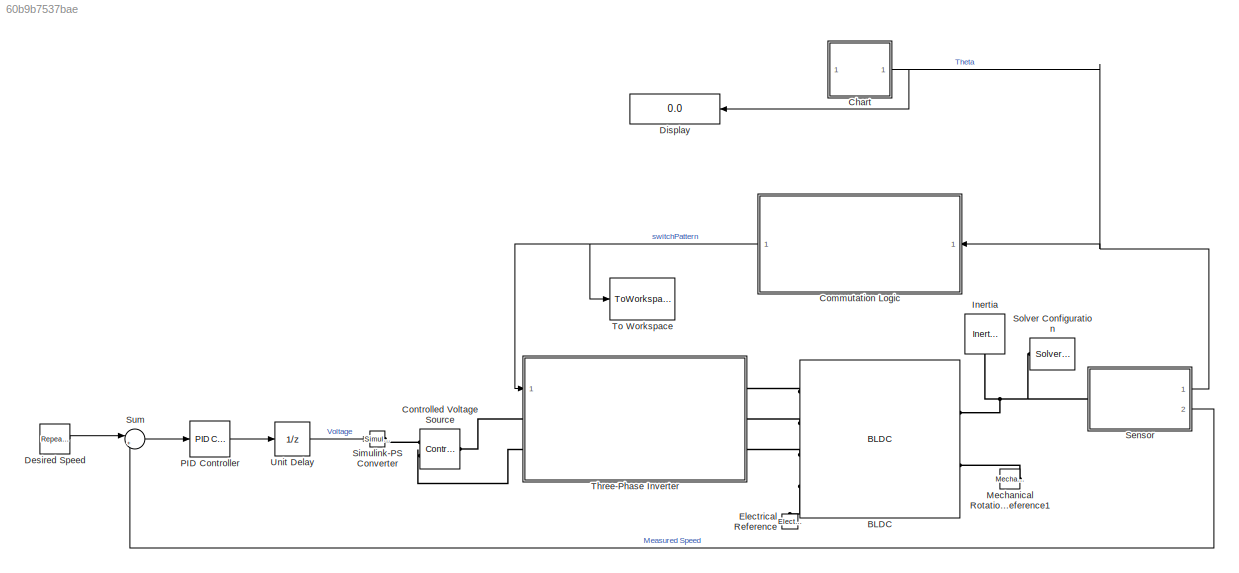
MODEL slx_60b9b7537bae
KIND model
CONFIG AbsTol = auto
CONFIG EnableMultiTasking = off
CONFIG FixedStep = 2e-5
CONFIG MaxStep = auto
CONFIG MinStep = auto
CONFIG RelTol = 1e-3
CONFIG SampleTimeConstraint = Unconstrained
CONFIG SolverName = ode14x
CONFIG StartTime = 0.0
CONFIG StopTime = 2
BLOCK [Reference] BLDC  REF=ee_lib/Electromechanical/Permanent Magnet/BLDC
  Ports = [0, 0, 0, 0, 0, 4, 2]
  SourceBlock = ee_lib/Electromechanical/Permanent Magnet/BLDC
  SourceProductBaseCode = PS
  SourceType = BLDC
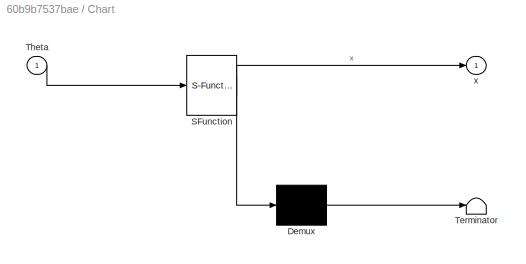
BLOCK [SubSystem] Chart
  ErrorFcn = Stateflow.Translate.translate
  PermitHierarchicalResolution = ExplicitOnly
  PortSchema = {"entries":[{"content":{"sides":[{"content":{"connectorIds":[]},"type":"ConnectorPlacement.EquallySpacedRectSide","uuid":"8c901309-16a6-498d-adf7-dd9d2867a7e0"},{"content":{"connectorIds":["In1","Out1"],"side":"RIGHT"},"type":"ConnectorPlacement.EquallySpacedRectSide","uuid":"0f25d315-72e8-4043-9602-56e0f6033b55"},{"content":{"connectorIds":[],"side":"TOP"},"type":"ConnectorPlacement.EquallySpaced...<+241ch>
  Ports = [1, 1]
  RequestExecContextInheritance = off
  SFBlockType = Chart
  TreatAsAtomicUnit = on
BLOCK [Demux] Chart/ Demux 
  Outputs = 1
  Ports = [1, 1]
BLOCK [S-Function] Chart/ SFunction 
  EnableBusSupport = on
  FunctionName = sf_sfun
  PortCounts = [1 2]
  Ports = [1, 2]
  SFcnIsStateOwnerBlock = off
  SFunctionDeploymentMode = off
  Tag = Stateflow S-Function 1
BLOCK [Terminator] Chart/ Terminator 
BLOCK [Inport] Chart/Theta
BLOCK [Outport] Chart/x
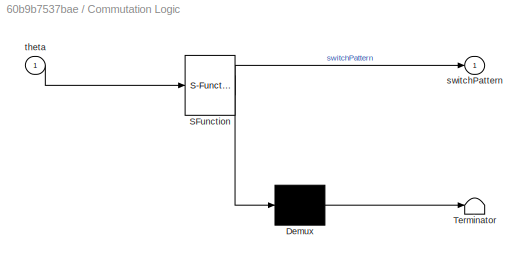
BLOCK [SubSystem] Commutation Logic
  ErrorFcn = Stateflow.Translate.translate
  PermitHierarchicalResolution = ExplicitOnly
  Ports = [1, 1]
  RequestExecContextInheritance = off
  SFBlockType = Chart
  TreatAsAtomicUnit = on
BLOCK [Demux] Commutation Logic/ Demux 
  Outputs = 1
  Ports = [1, 1]
BLOCK [S-Function] Commutation Logic/ SFunction 
  EnableBusSupport = on
  FunctionName = sf_sfun
  PortCounts = [1 2]
  Ports = [1, 2]
  SFcnIsStateOwnerBlock = off
  SFunctionDeploymentMode = off
  Tag = Stateflow S-Function 3
BLOCK [Terminator] Commutation Logic/ Terminator 
BLOCK [Outport] Commutation Logic/switchPattern
BLOCK [Inport] Commutation Logic/theta
BLOCK [Reference] Controlled Voltage Source  REF=fl_lib/Electrical/Electrical Sources/Controlled Voltage
Source
  Ports = [0, 0, 0, 0, 0, 1, 2]
  SourceBlock = fl_lib/Electrical/Electrical Sources/Controlled Voltage\nSource
  SourceProductBaseCode = SS
  SourceType = Controlled Voltage\nSource
BLOCK [Reference] Desired Speed  REF=simulink/Sources/Repeating
Sequence
  Ports = [0, 1]
  SourceBlock = simulink/Sources/Repeating\nSequence
  SourceProductBaseCode = SL
  SourceType = Repeating table
BLOCK [Display] Display
  Decimation = 1
  Ports = [1]
BLOCK [Reference] Electrical Reference  REF=fl_lib/Electrical/Electrical Elements/Electrical Reference
  NameLocation = right
  Ports = [0, 0, 0, 0, 0, 1]
  SourceBlock = fl_lib/Electrical/Electrical Elements/Electrical Reference
  SourceProductBaseCode = SS
  SourceType = Electrical Reference
BLOCK [Reference] Inertia  REF=fl_lib/Mechanical/Rotational Elements/Inertia
  NameLocation = left
  Ports = [0, 0, 0, 0, 0, 1]
  SourceBlock = fl_lib/Mechanical/Rotational Elements/Inertia
  SourceProductBaseCode = SS
  SourceType = Inertia
BLOCK [Reference] Mechanical Rotational Reference1  REF=fl_lib/Mechanical/Rotational Elements/Mechanical
Rotational Reference
  NameLocation = top
  Ports = [0, 0, 0, 0, 0, 1]
  SourceBlock = fl_lib/Mechanical/Rotational Elements/Mechanical\nRotational Reference
  SourceProductBaseCode = SS
  SourceType = Mechanical\nRotational Reference
BLOCK [Reference] PID Controller  REF=pid_lib/PID Controller
  Ports = [1, 1]
  SourceBlock = pid_lib/PID Controller
  SourceProductBaseCode = SL
  SourceType = PID 1dof
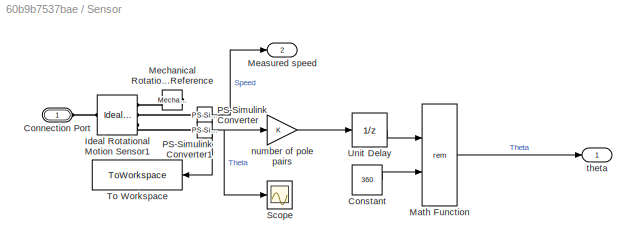
BLOCK [SubSystem] Sensor
  Ports = [0, 2, 0, 0, 0, 1]
  RequestExecContextInheritance = off
BLOCK [PMIOPort] Sensor/Connection Port
  Side = Left
BLOCK [Constant] Sensor/Constant
  SampleTime = 2e-5
  Value = 360
BLOCK [Reference] Sensor/Ideal Rotational Motion Sensor1  REF=fl_lib/Mechanical/Mechanical Sensors/Ideal Rotational
Motion Sensor
  Ports = [0, 0, 0, 0, 0, 1, 3]
  SourceBlock = fl_lib/Mechanical/Mechanical Sensors/Ideal Rotational\nMotion Sensor
  SourceProductBaseCode = SS
  SourceType = Ideal Rotational\nMotion Sensor
BLOCK [Math] Sensor/Math Function
  Operator = rem
  Ports = [2, 1]
BLOCK [Outport] Sensor/Measured speed
  Port = 2
BLOCK [Reference] Sensor/Mechanical Rotational Reference  REF=fl_lib/Mechanical/Rotational Elements/Mechanical
Rotational Reference
  NameLocation = top
  Ports = [0, 0, 0, 0, 0, 1]
  SourceBlock = fl_lib/Mechanical/Rotational Elements/Mechanical\nRotational Reference
  SourceProductBaseCode = SS
  SourceType = Mechanical\nRotational Reference
BLOCK [Reference] Sensor/PS-Simulink Converter  REF=nesl_utility/PS-Simulink
Converter
  Ports = [0, 1, 0, 0, 0, 1]
  SourceBlock = nesl_utility/PS-Simulink\nConverter
  SourceProductBaseCode = PW,SS
  SourceType = PS-Simulink\nConverter
BLOCK [Reference] Sensor/PS-Simulink Converter1  REF=nesl_utility/PS-Simulink
Converter
  Ports = [0, 1, 0, 0, 0, 1]
  SourceBlock = nesl_utility/PS-Simulink\nConverter
  SourceProductBaseCode = PW,SS
  SourceType = PS-Simulink\nConverter
BLOCK [Scope] Sensor/Scope
  Floating = off
  NumInputPorts = 1
  Ports = [1]
  ScopeSpecificationString = Simulink.scopes.TimeScopeBlockCfg('CurrentConfiguration', extmgr.ConfigurationSet(extmgr.Configuration('Core','General UI',true),extmgr.Configuration('Core','Source UI',true),extmgr.Configuration('Sources','WiredSimulink',true,'DataLoggingVariableName','ScopeData1','DataLogging',true,'DataLoggingSaveFormat','StructureWithTime'),extmgr.Configuration('Visuals','Time Domain',true,'SerializedDisplays'...<+1524ch>
BLOCK [ToWorkspace] Sensor/To Workspace
  FixptAsFi = on
  MaxDataPoints = inf
  Ports = [1]
  SampleTime = -1
  Save2DSignal = 2-D array (concatenate along first dimension)
  SaveFormat = Structure
  VariableName = thetaSim
BLOCK [UnitDelay] Sensor/Unit Delay
  HasFrameUpgradeWarning = on
  SampleTime = 2e-5
BLOCK [Gain] Sensor/number of pole pairs
BLOCK [Outport] Sensor/theta
BLOCK [Reference] Simulink-PS Converter  REF=nesl_utility/Simulink-PS
Converter
  Ports = [1, 0, 0, 0, 0, 0, 1]
  SourceBlock = nesl_utility/Simulink-PS\nConverter
  SourceProductBaseCode = PW,SS
  SourceType = Simulink-PS\nConverter
BLOCK [Reference] Solver Configuration  REF=nesl_utility/Solver
Configuration
  NameLocation = top
  Ports = [0, 0, 0, 0, 0, 0, 1]
  SourceBlock = nesl_utility/Solver\nConfiguration
  SourceProductBaseCode = PW,SS
  SourceType = Solver\nConfiguration
BLOCK [Sum] Sum
  Inputs = |+-
  Ports = [2, 1]
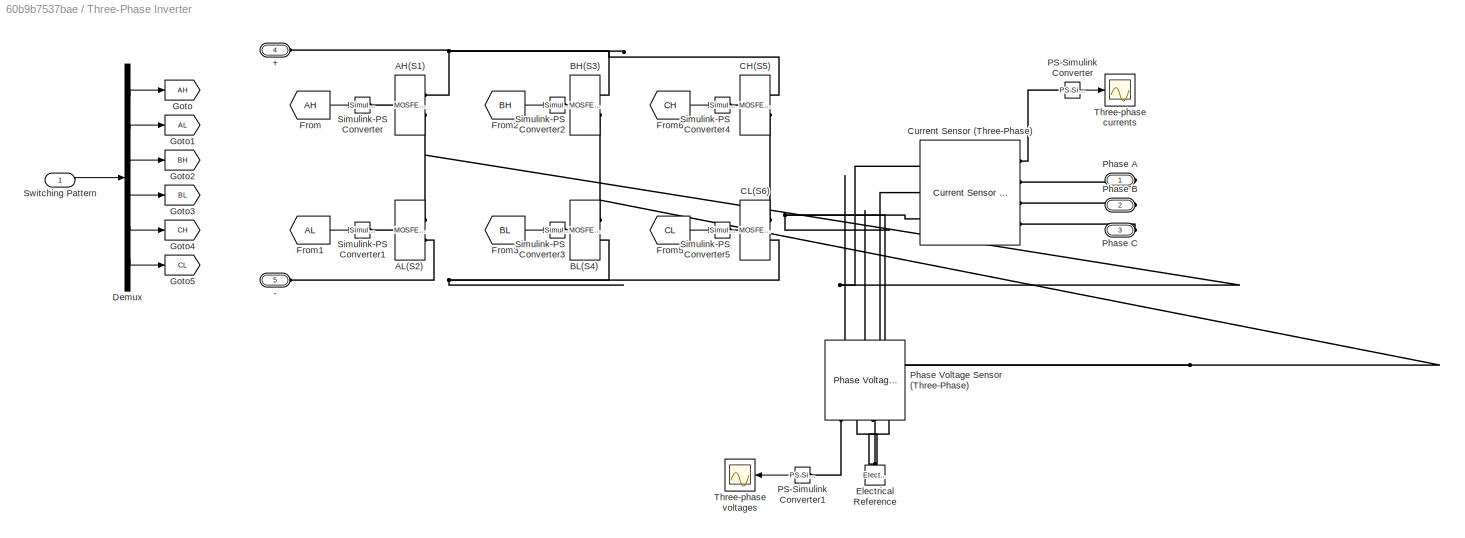
BLOCK [SubSystem] Three-Phase Inverter
  Ports = [1, 0, 0, 0, 0, 2, 3]
  RequestExecContextInheritance = off
BLOCK [PMIOPort] Three-Phase Inverter/+
  Port = 4
  Side = Left
BLOCK [PMIOPort] Three-Phase Inverter/-
  Port = 5
  Side = Left
BLOCK [Reference] Three-Phase Inverter/AH(S1)  REF=ee_lib/Semiconductors &
Converters/MOSFET
(Ideal,
Switching)
  Ports = [0, 0, 0, 0, 0, 1, 2]
  SourceBlock = ee_lib/Semiconductors &\nConverters/MOSFET\n(Ideal,\nSwitching)
  SourceProductBaseCode = PS
  SourceType = MOSFET\n(Ideal,\nSwitching)
BLOCK [Reference] Three-Phase Inverter/AL(S2)  REF=ee_lib/Semiconductors &
Converters/MOSFET
(Ideal,
Switching)
  Ports = [0, 0, 0, 0, 0, 1, 2]
  SourceBlock = ee_lib/Semiconductors &\nConverters/MOSFET\n(Ideal,\nSwitching)
  SourceProductBaseCode = PS
  SourceType = MOSFET\n(Ideal,\nSwitching)
BLOCK [Reference] Three-Phase Inverter/BH(S3)  REF=ee_lib/Semiconductors &
Converters/MOSFET
(Ideal,
Switching)
  Ports = [0, 0, 0, 0, 0, 1, 2]
  SourceBlock = ee_lib/Semiconductors &\nConverters/MOSFET\n(Ideal,\nSwitching)
  SourceProductBaseCode = PS
  SourceType = MOSFET\n(Ideal,\nSwitching)
BLOCK [Reference] Three-Phase Inverter/BL(S4)  REF=ee_lib/Semiconductors &
Converters/MOSFET
(Ideal,
Switching)
  Ports = [0, 0, 0, 0, 0, 1, 2]
  SourceBlock = ee_lib/Semiconductors &\nConverters/MOSFET\n(Ideal,\nSwitching)
  SourceProductBaseCode = PS
  SourceType = MOSFET\n(Ideal,\nSwitching)
BLOCK [Reference] Three-Phase Inverter/CH(S5)  REF=ee_lib/Semiconductors &
Converters/MOSFET
(Ideal,
Switching)
  Ports = [0, 0, 0, 0, 0, 1, 2]
  SourceBlock = ee_lib/Semiconductors &\nConverters/MOSFET\n(Ideal,\nSwitching)
  SourceProductBaseCode = PS
  SourceType = MOSFET\n(Ideal,\nSwitching)
BLOCK [Reference] Three-Phase Inverter/CL(S6)  REF=ee_lib/Semiconductors &
Converters/MOSFET
(Ideal,
Switching)
  Ports = [0, 0, 0, 0, 0, 1, 2]
  SourceBlock = ee_lib/Semiconductors &\nConverters/MOSFET\n(Ideal,\nSwitching)
  SourceProductBaseCode = PS
  SourceType = MOSFET\n(Ideal,\nSwitching)
BLOCK [Reference] Three-Phase Inverter/Current Sensor (Three-Phase)  REF=ee_lib/Sensors &
Transducers/Current Sensor
(Three-Phase)
  Ports = [0, 0, 0, 0, 0, 3, 4]
  SourceBlock = ee_lib/Sensors &\nTransducers/Current Sensor\n(Three-Phase)
  SourceProductBaseCode = PS
  SourceType = Current Sensor\n(Three-Phase)
BLOCK [Demux] Three-Phase Inverter/Demux
  Outputs = 6
  Ports = [1, 6]
BLOCK [Reference] Three-Phase Inverter/Electrical Reference  REF=fl_lib/Electrical/Electrical Elements/Electrical Reference
  NameLocation = right
  Ports = [0, 0, 0, 0, 0, 1]
  SourceBlock = fl_lib/Electrical/Electrical Elements/Electrical Reference
  SourceProductBaseCode = SS
  SourceType = Electrical Reference
BLOCK [From] Three-Phase Inverter/From
  GotoTag = AH
BLOCK [From] Three-Phase Inverter/From1
  GotoTag = AL
BLOCK [From] Three-Phase Inverter/From2
  GotoTag = BH
BLOCK [From] Three-Phase Inverter/From3
  GotoTag = BL
BLOCK [From] Three-Phase Inverter/From5
  GotoTag = CL
BLOCK [From] Three-Phase Inverter/From6
  GotoTag = CH
BLOCK [Goto] Three-Phase Inverter/Goto
  GotoTag = AH
BLOCK [Goto] Three-Phase Inverter/Goto1
  GotoTag = AL
BLOCK [Goto] Three-Phase Inverter/Goto2
  GotoTag = BH
BLOCK [Goto] Three-Phase Inverter/Goto3
  GotoTag = BL
BLOCK [Goto] Three-Phase Inverter/Goto4
  GotoTag = CH
BLOCK [Goto] Three-Phase Inverter/Goto5
  GotoTag = CL
BLOCK [Reference] Three-Phase Inverter/PS-Simulink Converter  REF=nesl_utility/PS-Simulink
Converter
  Ports = [0, 1, 0, 0, 0, 1]
  SourceBlock = nesl_utility/PS-Simulink\nConverter
  SourceProductBaseCode = PW,SS
  SourceType = PS-Simulink\nConverter
BLOCK [Reference] Three-Phase Inverter/PS-Simulink Converter1  REF=nesl_utility/PS-Simulink
Converter
  Ports = [0, 1, 0, 0, 0, 1]
  SourceBlock = nesl_utility/PS-Simulink\nConverter
  SourceProductBaseCode = PW,SS
  SourceType = PS-Simulink\nConverter
BLOCK [PMIOPort] Three-Phase Inverter/Phase A
  Side = Right
BLOCK [PMIOPort] Three-Phase Inverter/Phase B
  Port = 2
  Side = Right
BLOCK [PMIOPort] Three-Phase Inverter/Phase C
  Port = 3
  Side = Right
BLOCK [Reference] Three-Phase Inverter/Phase Voltage Sensor (Three-Phase)  REF=ee_lib/Sensors &
Transducers/Phase Voltage Sensor
(Three-Phase)
  NameLocation = right
  Ports = [0, 0, 0, 0, 0, 3, 4]
  SourceBlock = ee_lib/Sensors &\nTransducers/Phase Voltage Sensor\n(Three-Phase)
  SourceProductBaseCode = PS
  SourceType = Phase Voltage Sensor\n(Three-Phase)
BLOCK [Reference] Three-Phase Inverter/Simulink-PS Converter  REF=nesl_utility/Simulink-PS
Converter
  Ports = [1, 0, 0, 0, 0, 0, 1]
  SourceBlock = nesl_utility/Simulink-PS\nConverter
  SourceProductBaseCode = PW,SS
  SourceType = Simulink-PS\nConverter
BLOCK [Reference] Three-Phase Inverter/Simulink-PS Converter1  REF=nesl_utility/Simulink-PS
Converter
  Ports = [1, 0, 0, 0, 0, 0, 1]
  SourceBlock = nesl_utility/Simulink-PS\nConverter
  SourceProductBaseCode = PW,SS
  SourceType = Simulink-PS\nConverter
BLOCK [Reference] Three-Phase Inverter/Simulink-PS Converter2  REF=nesl_utility/Simulink-PS
Converter
  Ports = [1, 0, 0, 0, 0, 0, 1]
  SourceBlock = nesl_utility/Simulink-PS\nConverter
  SourceProductBaseCode = PW,SS
  SourceType = Simulink-PS\nConverter
BLOCK [Reference] Three-Phase Inverter/Simulink-PS Converter3  REF=nesl_utility/Simulink-PS
Converter
  Ports = [1, 0, 0, 0, 0, 0, 1]
  SourceBlock = nesl_utility/Simulink-PS\nConverter
  SourceProductBaseCode = PW,SS
  SourceType = Simulink-PS\nConverter
BLOCK [Reference] Three-Phase Inverter/Simulink-PS Converter4  REF=nesl_utility/Simulink-PS
Converter
  Ports = [1, 0, 0, 0, 0, 0, 1]
  SourceBlock = nesl_utility/Simulink-PS\nConverter
  SourceProductBaseCode = PW,SS
  SourceType = Simulink-PS\nConverter
BLOCK [Reference] Three-Phase Inverter/Simulink-PS Converter5  REF=nesl_utility/Simulink-PS
Converter
  Ports = [1, 0, 0, 0, 0, 0, 1]
  SourceBlock = nesl_utility/Simulink-PS\nConverter
  SourceProductBaseCode = PW,SS
  SourceType = Simulink-PS\nConverter
BLOCK [Inport] Three-Phase Inverter/Switching Pattern
BLOCK [Scope] Three-Phase Inverter/Three-phase currents
  Floating = off
  NumInputPorts = 1
  Ports = [1]
  ScopeSpecificationString = Simulink.scopes.TimeScopeBlockCfg('CurrentConfiguration', extmgr.ConfigurationSet(extmgr.Configuration('Core','General UI',true),extmgr.Configuration('Core','Source UI',true),extmgr.Configuration('Sources','WiredSimulink',true),extmgr.Configuration('Visuals','Time Domain',true,'SerializedDisplays',{struct('MinYLimReal','-2717.39095','MaxYLimReal','2717.39095','YLabelReal','','MinYLimMag','  0.0000...<+1450ch>
BLOCK [Scope] Three-Phase Inverter/Three-phase voltages
  Floating = off
  NumInputPorts = 1
  Ports = [1]
  ScopeSpecificationString = Simulink.scopes.TimeScopeBlockCfg('CurrentConfiguration', extmgr.ConfigurationSet(extmgr.Configuration('Core','General UI',true),extmgr.Configuration('Core','Source UI',true),extmgr.Configuration('Sources','WiredSimulink',true,'DataLoggingVariableName','ScopeData1'),extmgr.Configuration('Visuals','Time Domain',true,'SerializedDisplays',{struct('MinYLimReal','-84.27159','MaxYLimReal','84.27683','YL...<+1474ch>
BLOCK [ToWorkspace] To Workspace
  MaxDataPoints = inf
  Ports = [1]
  SampleTime = -1
  Save2DSignal = 2-D array (concatenate along first dimension)
  SaveFormat = Structure
  VariableName = switchPattern
BLOCK [UnitDelay] Unit Delay
  HasFrameUpgradeWarning = on
  SampleTime = -1
LINE Chart:1 -> Display:1
NET Commutation Logic:1 -> Three-Phase Inverter:1, To Workspace:1
LINE Desired Speed:1 -> Sum:1
LINE PID Controller:1 -> Unit Delay:1
LINE Sensor/Constant:1 -> Sensor/Math Function:2
LINE Sensor/Math Function:1 -> Sensor/theta:1
NET Sensor/PS-Simulink Converter1:1 -> Sensor/Scope:1, Sensor/To Workspace:1, Sensor/number of pole pairs:1
LINE Sensor/PS-Simulink Converter:1 -> Sensor/Measured speed:1
LINE Sensor/Unit Delay:1 -> Sensor/Math Function:1
LINE Sensor/number of pole pairs:1 -> Sensor/Unit Delay:1
NET Sensor:1 -> Chart:1, Commutation Logic:1
LINE Sensor:2 -> Sum:2
LINE Sum:1 -> PID Controller:1
LINE Three-Phase Inverter/Demux:1 -> Three-Phase Inverter/Goto:1
LINE Three-Phase Inverter/Demux:2 -> Three-Phase Inverter/Goto1:1
LINE Three-Phase Inverter/Demux:3 -> Three-Phase Inverter/Goto2:1
LINE Three-Phase Inverter/Demux:4 -> Three-Phase Inverter/Goto3:1
LINE Three-Phase Inverter/Demux:5 -> Three-Phase Inverter/Goto4:1
LINE Three-Phase Inverter/Demux:6 -> Three-Phase Inverter/Goto5:1
LINE Three-Phase Inverter/From1:1 -> Three-Phase Inverter/Simulink-PS Converter1:1
LINE Three-Phase Inverter/From2:1 -> Three-Phase Inverter/Simulink-PS Converter2:1
LINE Three-Phase Inverter/From3:1 -> Three-Phase Inverter/Simulink-PS Converter3:1
LINE Three-Phase Inverter/From5:1 -> Three-Phase Inverter/Simulink-PS Converter5:1
LINE Three-Phase Inverter/From6:1 -> Three-Phase Inverter/Simulink-PS Converter4:1
LINE Three-Phase Inverter/From:1 -> Three-Phase Inverter/Simulink-PS Converter:1
LINE Three-Phase Inverter/PS-Simulink Converter1:1 -> Three-Phase Inverter/Three-phase voltages:1
LINE Three-Phase Inverter/PS-Simulink Converter:1 -> Three-Phase Inverter/Three-phase currents:1
LINE Three-Phase Inverter/Switching Pattern:1 -> Three-Phase Inverter/Demux:1
LINE Unit Delay:1 -> Simulink-PS Converter:1
PLINE BLDC:LConn1 -- Three-Phase Inverter:RConn1
PLINE BLDC:LConn2 -- Three-Phase Inverter:RConn2
PLINE BLDC:LConn3 -- Three-Phase Inverter:RConn3
PLINE BLDC:LConn4 -- Electrical Reference:LConn1
PNET net1: BLDC:RConn1 -- Inertia:LConn1 -- Sensor:LConn1 -- Solver Configuration:RConn1
PLINE BLDC:RConn2 -- Mechanical Rotational Reference1:LConn1
PLINE Controlled Voltage Source:LConn1 -- Three-Phase Inverter:LConn1
PLINE Controlled Voltage Source:RConn1 -- Simulink-PS Converter:RConn1
PLINE Controlled Voltage Source:RConn2 -- Three-Phase Inverter:LConn2
PLINE Sensor/Connection Port:RConn1 -- Sensor/Ideal Rotational Motion Sensor1:LConn1
PLINE Sensor/Ideal Rotational Motion Sensor1:RConn1 -- Sensor/Mechanical Rotational Reference:LConn1
PLINE Sensor/Ideal Rotational Motion Sensor1:RConn2 -- Sensor/PS-Simulink Converter:LConn1
PLINE Sensor/Ideal Rotational Motion Sensor1:RConn3 -- Sensor/PS-Simulink Converter1:LConn1
PNET net2: Three-Phase Inverter/+:RConn1 -- Three-Phase Inverter/AH(S1):RConn1 -- Three-Phase Inverter/BH(S3):RConn1 -- Three-Phase Inverter/CH(S5):RConn1
PNET net3: Three-Phase Inverter/-:RConn1 -- Three-Phase Inverter/AL(S2):RConn2 -- Three-Phase Inverter/BL(S4):RConn2 -- Three-Phase Inverter/CL(S6):RConn2
PLINE Three-Phase Inverter/AH(S1):LConn1 -- Three-Phase Inverter/Simulink-PS Converter:RConn1
PNET net4: Three-Phase Inverter/AH(S1):RConn2 -- Three-Phase Inverter/AL(S2):RConn1 -- Three-Phase Inverter/Current Sensor (Three-Phase):LConn1 -- Three-Phase Inverter/Phase Voltage Sensor (Three-Phase):LConn1
PLINE Three-Phase Inverter/AL(S2):LConn1 -- Three-Phase Inverter/Simulink-PS Converter1:RConn1
PLINE Three-Phase Inverter/BH(S3):LConn1 -- Three-Phase Inverter/Simulink-PS Converter2:RConn1
PNET net5: Three-Phase Inverter/BH(S3):RConn2 -- Three-Phase Inverter/BL(S4):RConn1 -- Three-Phase Inverter/Current Sensor (Three-Phase):LConn2 -- Three-Phase Inverter/Phase Voltage Sensor (Three-Phase):LConn2
PLINE Three-Phase Inverter/BL(S4):LConn1 -- Three-Phase Inverter/Simulink-PS Converter3:RConn1
PLINE Three-Phase Inverter/CH(S5):LConn1 -- Three-Phase Inverter/Simulink-PS Converter4:RConn1
PNET net6: Three-Phase Inverter/CH(S5):RConn2 -- Three-Phase Inverter/CL(S6):RConn1 -- Three-Phase Inverter/Current Sensor (Three-Phase):LConn3 -- Three-Phase Inverter/Phase Voltage Sensor (Three-Phase):LConn3
PLINE Three-Phase Inverter/CL(S6):LConn1 -- Three-Phase Inverter/Simulink-PS Converter5:RConn1
PLINE Three-Phase Inverter/Current Sensor (Three-Phase):RConn1 -- Three-Phase Inverter/PS-Simulink Converter:LConn1
PLINE Three-Phase Inverter/Current Sensor (Three-Phase):RConn2 -- Three-Phase Inverter/Phase A:RConn1
PLINE Three-Phase Inverter/Current Sensor (Three-Phase):RConn3 -- Three-Phase Inverter/Phase B:RConn1
PLINE Three-Phase Inverter/Current Sensor (Three-Phase):RConn4 -- Three-Phase Inverter/Phase C:RConn1
PNET net7: Three-Phase Inverter/Electrical Reference:LConn1 -- Three-Phase Inverter/Phase Voltage Sensor (Three-Phase):RConn2 -- Three-Phase Inverter/Phase Voltage Sensor (Three-Phase):RConn3 -- Three-Phase Inverter/Phase Voltage Sensor (Three-Phase):RConn4
PLINE Three-Phase Inverter/PS-Simulink Converter1:LConn1 -- Three-Phase Inverter/Phase Voltage Sensor (Three-Phase):RConn1
note: NET lines group one-source signal fan-out (src -> all destinations, sorted); 1:1 wires keep LINE; PNET lines group multi-terminal physical nets as a canonical sorted terminal list (undirected conserving connections); 2-terminal nets keep the pairwise PLINE form
CHART Chart states=2 transitions=3
  STATE_LABEL 'B\nentry:\nx=1;\n'
  STATE_LABEL 'A\nentry:\nx=0;\nduring:\nx=0;'
CHART Commutation Logic states=1 transitions=1
  STATE_LABEL 'getSwitchPatternBy(t)'
  STATE_LABEL 'SCRIPT:\nfunction getSwitchPatternBy(t)\n\naVarTruthTableCondition_1 = false;\naVarTruthTableCondition_2 = false;\naVarTruthTableCondition_3 = false;\naVarTruthTableCondition_4 = false;\naVarTruthTableCondition_5 = false;\naVarTruthTableCondition_6 = false;\n\n\n% Sector 1\n\naVarTruthTableCondition_1 = logical(t > 0 && t <= 60);\n\n% Sector 2\n\naVarTruthTableCondition_2 = logical(t > 60 && t <= 120);\n\n% Sector 3...<+2044ch>'
CHART  states=0 transitions=0
CHART  states=0 transitions=0
